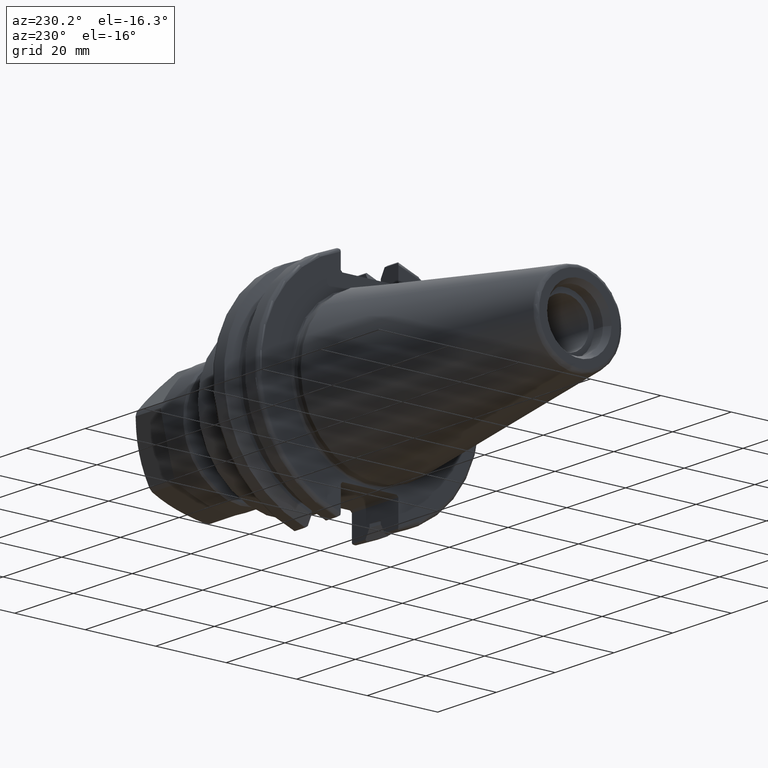
[diagram: clean part render]
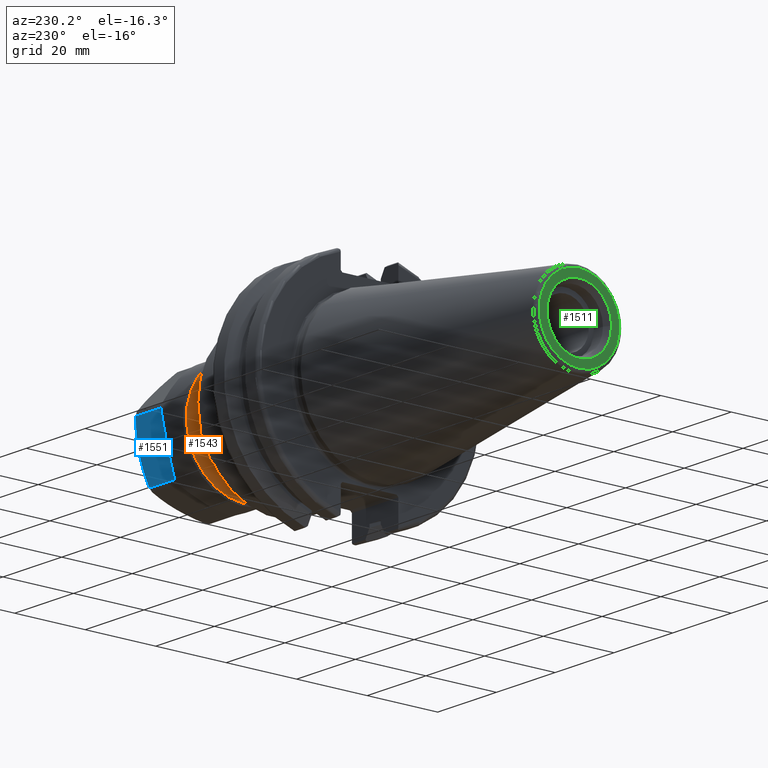
[diagram: same view with three faces highlighted in distinct colors, each labeled with its STEP entity id]
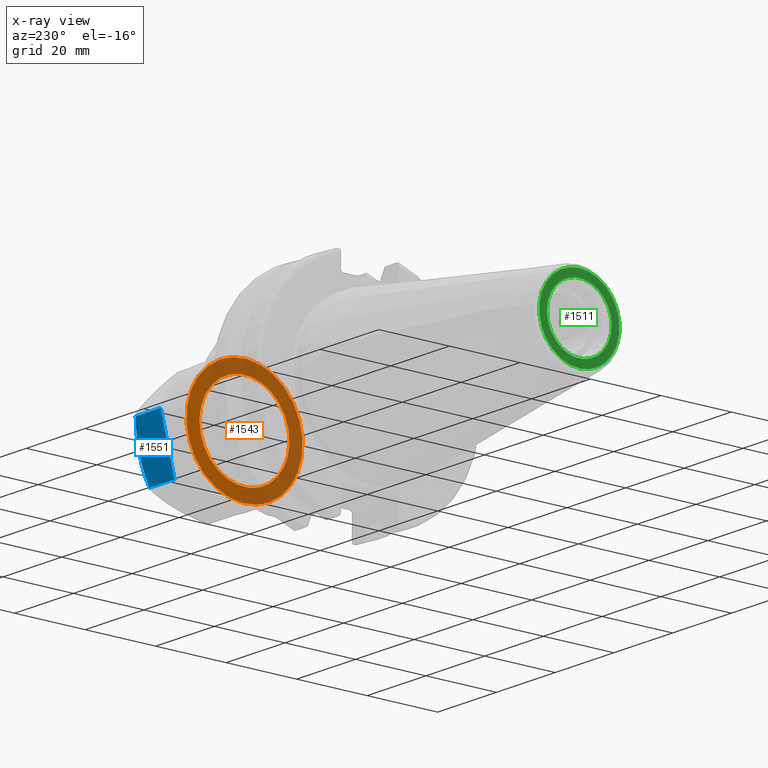
[diagram: x-ray of the same camera — body ghosted, the three highlighted faces saturated]
A machine part, auxiliary view with three faces highlighted in distinct colors.
The next image is the same camera in x-ray (body ghosted, the three faces saturated) — at least one of them is partly hidden behind the body in this view.
Their STEP definitions:

[orange] entity #1543 — the highlighted planar face has unit normal (1, 0, 0).
#122=FACE_BOUND('',#350,.T.);
#158=PLANE('',#1757);
#251=FACE_OUTER_BOUND('',#349,.T.);
#349=EDGE_LOOP('',(#1326));
#350=EDGE_LOOP('',(#1327));
#632=CIRCLE('',#1758,16.5);
#633=CIRCLE('',#1759,12.75);
#758=VERTEX_POINT('',#2718);
#759=VERTEX_POINT('',#2720);
#955=EDGE_CURVE('',#758,#758,#632,.T.);
#956=EDGE_CURVE('',#759,#759,#633,.T.);
#1326=ORIENTED_EDGE('',*,*,#955,.T.);
#1327=ORIENTED_EDGE('',*,*,#956,.T.);
#1543=ADVANCED_FACE('',(#251,#122),#158,.F.);
#1757=AXIS2_PLACEMENT_3D('',#2717,#2116,#2117);
#1758=AXIS2_PLACEMENT_3D('',#2719,#2118,#2119);
#1759=AXIS2_PLACEMENT_3D('',#2721,#2120,#2121);
#2116=DIRECTION('center_axis',(1.,0.,0.));
#2117=DIRECTION('ref_axis',(0.,0.,-1.));
#2118=DIRECTION('center_axis',(-1.,0.,0.));
#2119=DIRECTION('ref_axis',(0.,0.,-1.));
#2120=DIRECTION('center_axis',(1.,0.,0.));
#2121=DIRECTION('ref_axis',(0.,1.,0.));
#2717=CARTESIAN_POINT('Origin',(-9.5,0.,0.));
#2718=CARTESIAN_POINT('',(-9.5,0.,16.5));
#2719=CARTESIAN_POINT('Origin',(-9.5,6.490338081414E-14,0.));
#2720=CARTESIAN_POINT('',(-9.5,12.749681148272,-0.0901699362227022));
#2721=CARTESIAN_POINT('Origin',(-9.5,0.,0.));

[blue] entity #1551 — the highlighted planar face has unit normal (0, -0.9698, 0.2439).
#87=(
BOUNDED_CURVE()
B_SPLINE_CURVE(2,(#2792,#2793,#2794),.UNSPECIFIED.,.F.,.F.)
B_SPLINE_CURVE_WITH_KNOTS((3,3),(1.89977904823299,4.47851568551581),
 .UNSPECIFIED.)
CURVE()
GEOMETRIC_REPRESENTATION_ITEM()
RATIONAL_B_SPLINE_CURVE((1.51788044142248,1.72026450027882,1.51788044142245))
REPRESENTATION_ITEM('')
);
#163=PLANE('',#1782);
#259=FACE_OUTER_BOUND('',#358,.T.);
#358=EDGE_LOOP('',(#1390,#1391,#1392,#1393));
#468=LINE('',#2770,#567);
#469=LINE('',#2774,#568);
#474=LINE('',#2811,#573);
#567=VECTOR('',#2161,8.567949192431);
#568=VECTOR('',#2164,8.567949192431);
#573=VECTOR('',#2185,15.9999999999995);
#781=VERTEX_POINT('',#2767);
#782=VERTEX_POINT('',#2769);
#783=VERTEX_POINT('',#2771);
#784=VERTEX_POINT('',#2773);
#980=EDGE_CURVE('',#782,#781,#468,.T.);
#982=EDGE_CURVE('',#783,#784,#469,.T.);
#989=EDGE_CURVE('',#781,#784,#87,.T.);
#996=EDGE_CURVE('',#782,#783,#474,.T.);
#1390=ORIENTED_EDGE('',*,*,#996,.F.);
#1391=ORIENTED_EDGE('',*,*,#980,.T.);
#1392=ORIENTED_EDGE('',*,*,#989,.T.);
#1393=ORIENTED_EDGE('',*,*,#982,.F.);
#1551=ADVANCED_FACE('',(#259),#163,.F.);
#1782=AXIS2_PLACEMENT_3D('',#2810,#2183,#2184);
#2161=DIRECTION('',(1.,0.,0.));
#2164=DIRECTION('',(1.,0.,0.));
#2183=DIRECTION('center_axis',(0.,-0.866025403784429,0.500000000000017));
#2184=DIRECTION('ref_axis',(0.,-0.500000000000017,-0.866025403784429));
#2185=DIRECTION('',(0.,-0.500000000000017,-0.866025403784429));
#2767=CARTESIAN_POINT('',(7.767949192431,16.99038105677,-0.5717967697245));
#2769=CARTESIAN_POINT('',(-0.8,16.99038105677,-0.5717967697245));
#2770=CARTESIAN_POINT('',(-0.8,16.99038105677,-0.5717967697245));
#2771=CARTESIAN_POINT('',(-0.8,8.990381056767,-14.42820323028));
#2773=CARTESIAN_POINT('',(7.767949192431,8.990381056767,-14.42820323028));
#2774=CARTESIAN_POINT('',(-0.8,8.990381056767,-14.42820323028));
#2792=CARTESIAN_POINT('Ctrl Pts',(7.76794919242789,16.9903810567699,-0.571796769725043));
#2793=CARTESIAN_POINT('Ctrl Pts',(9.94150314702463,12.9903810567687,-7.50000000000218));
#2794=CARTESIAN_POINT('Ctrl Pts',(7.76794919242752,8.99038105676748,-14.4282032302796));
#2810=CARTESIAN_POINT('Origin',(9.5,17.99038105677,1.160254037844));
#2811=CARTESIAN_POINT('',(-0.8,16.99038105677,-0.5717967697245));

[green] entity #1511 — the highlighted planar face has unit normal (-1, 0, 0).
#119=FACE_BOUND('',#315,.T.);
#141=PLANE('',#1707);
#219=FACE_OUTER_BOUND('',#314,.T.);
#314=EDGE_LOOP('',(#1185));
#315=EDGE_LOOP('',(#1186));
#614=CIRCLE('',#1706,11.4071305970304);
#615=CIRCLE('',#1708,9.15);
#740=VERTEX_POINT('',#2609);
#741=VERTEX_POINT('',#2613);
#911=EDGE_CURVE('',#740,#740,#614,.T.);
#912=EDGE_CURVE('',#741,#741,#615,.T.);
#1185=ORIENTED_EDGE('',*,*,#911,.F.);
#1186=ORIENTED_EDGE('',*,*,#912,.T.);
#1511=ADVANCED_FACE('',(#219,#119),#141,.T.);
#1706=AXIS2_PLACEMENT_3D('',#2611,#1994,#1995);
#1707=AXIS2_PLACEMENT_3D('',#2612,#1996,#1997);
#1708=AXIS2_PLACEMENT_3D('',#2614,#1998,#1999);
#1994=DIRECTION('center_axis',(1.,0.,0.));
#1995=DIRECTION('ref_axis',(0.,-1.,1.83697019872103E-16));
#1996=DIRECTION('center_axis',(-1.,0.,0.));
#1997=DIRECTION('ref_axis',(0.,0.,1.));
#1998=DIRECTION('center_axis',(1.,0.,0.));
#1999=DIRECTION('ref_axis',(0.,0.,-1.));
#2609=CARTESIAN_POINT('',(-68.25,-1.39697059731091E-15,11.4071305970304));
#2611=CARTESIAN_POINT('Origin',(-68.25,0.,0.));
#2612=CARTESIAN_POINT('Origin',(-68.25,12.271875,0.));
#2613=CARTESIAN_POINT('',(-68.25,-9.15,-1.12055182121983E-15));
#2614=CARTESIAN_POINT('Origin',(-68.25,0.,0.));